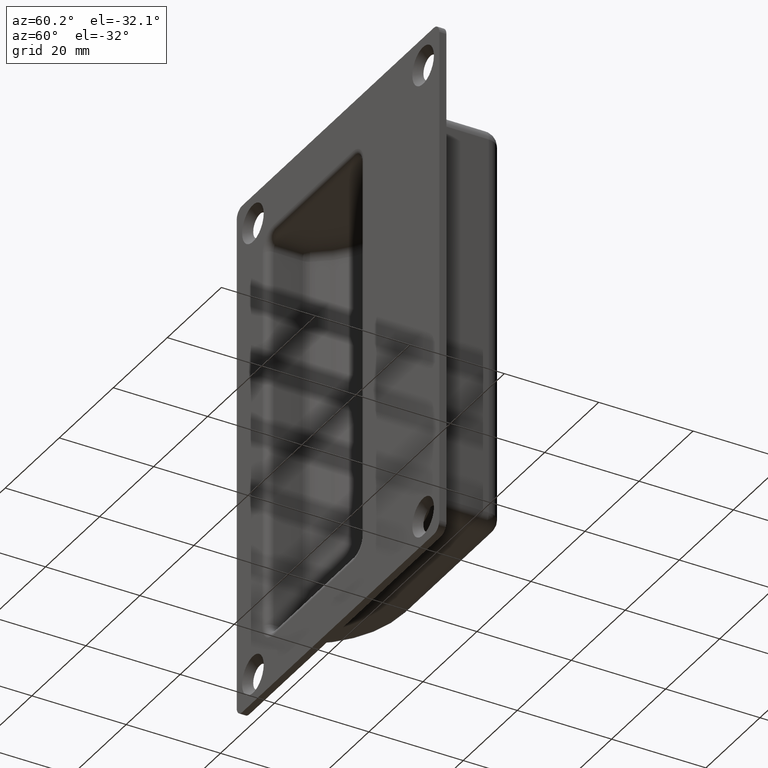
[diagram: clean part render]
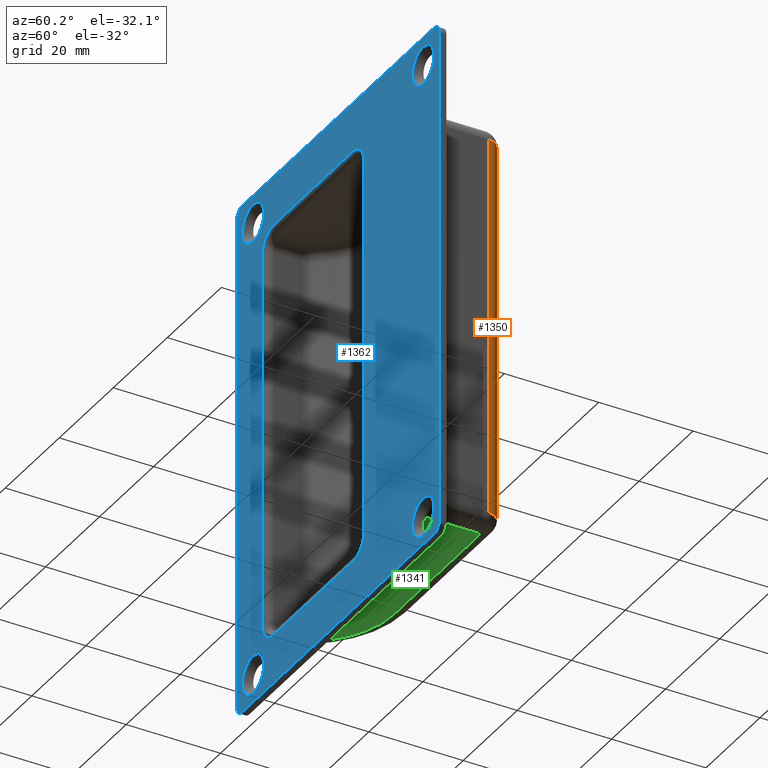
[diagram: same view with three faces highlighted in distinct colors, each labeled with its STEP entity id]
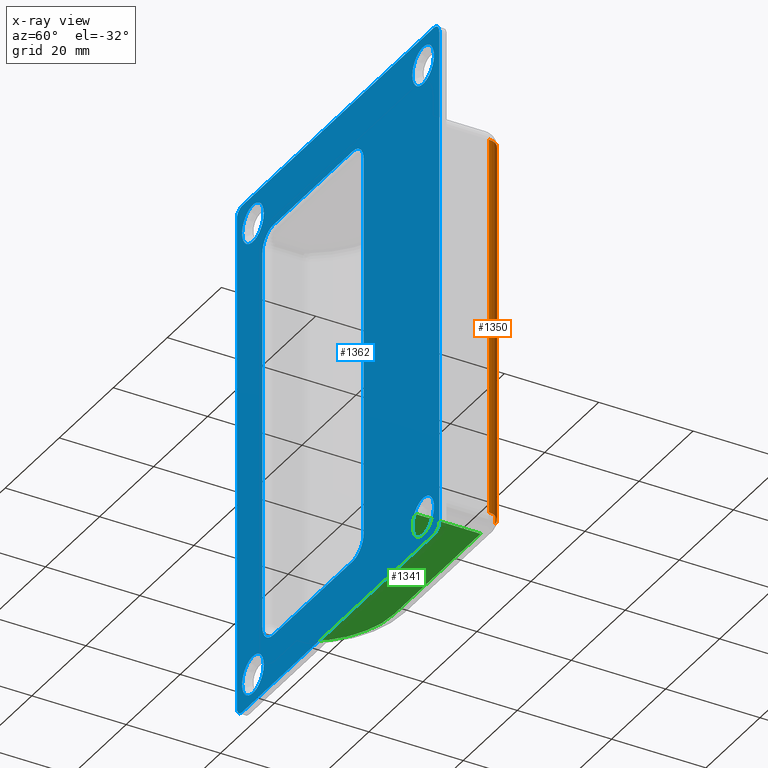
[diagram: x-ray of the same camera — body ghosted, the three highlighted faces saturated]
A machine part, auxiliary view with three faces highlighted in distinct colors.
The next image is the same camera in x-ray (body ghosted, the three faces saturated) — at least one of them is partly hidden behind the body in this view.
Their STEP definitions:

[orange] entity #1350 — the highlighted cylindrical surface (edge-blend (fillet) strip) has radius 3 mm, axis along (0, 0, 1).
#128=LINE('',#2259,#224);
#132=LINE('',#2279,#228);
#224=VECTOR('',#1837,81.);
#228=VECTOR('',#1867,81.);
#288=CYLINDRICAL_SURFACE('',#1501,3.00000000000001);
#354=FACE_OUTER_BOUND('',#440,.T.);
#440=EDGE_LOOP('',(#1141,#1142,#1143,#1144));
#538=CIRCLE('',#1485,3.00000000000001);
#543=CIRCLE('',#1495,3.00000000000001);
#600=VERTEX_POINT('',#2090);
#645=VERTEX_POINT('',#2243);
#647=VERTEX_POINT('',#2252);
#648=VERTEX_POINT('',#2261);
#813=EDGE_CURVE('',#645,#647,#538,.T.);
#814=EDGE_CURVE('',#647,#600,#128,.T.);
#820=EDGE_CURVE('',#600,#648,#543,.T.);
#824=EDGE_CURVE('',#645,#648,#132,.T.);
#1141=ORIENTED_EDGE('',*,*,#813,.F.);
#1142=ORIENTED_EDGE('',*,*,#824,.T.);
#1143=ORIENTED_EDGE('',*,*,#820,.F.);
#1144=ORIENTED_EDGE('',*,*,#814,.F.);
#1350=ADVANCED_FACE('',(#354),#288,.T.);
#1485=AXIS2_PLACEMENT_3D('',#2256,#1831,#1832);
#1495=AXIS2_PLACEMENT_3D('',#2271,#1853,#1854);
#1501=AXIS2_PLACEMENT_3D('',#2280,#1868,#1869);
#1831=DIRECTION('center_axis',(0.,0.,-1.));
#1832=DIRECTION('ref_axis',(1.,1.48029736616687E-15,0.));
#1837=DIRECTION('',(0.,0.,1.));
#1853=DIRECTION('center_axis',(0.,0.,1.));
#1854=DIRECTION('ref_axis',(1.,1.48029736616687E-15,0.));
#1867=DIRECTION('',(0.,0.,1.));
#1868=DIRECTION('center_axis',(0.,0.,1.));
#1869=DIRECTION('ref_axis',(1.,1.48029736616687E-15,0.));
#2090=CARTESIAN_POINT('',(54.,14.5,40.5));
#2243=CARTESIAN_POINT('',(51.,17.5,-40.5));
#2252=CARTESIAN_POINT('',(54.,14.5,-40.5));
#2256=CARTESIAN_POINT('Origin',(51.,14.5,-40.5));
#2259=CARTESIAN_POINT('',(54.,14.5,0.));
#2261=CARTESIAN_POINT('',(51.,17.5,40.5));
#2271=CARTESIAN_POINT('Origin',(51.,14.5,40.5));
#2279=CARTESIAN_POINT('',(51.,17.5,0.));
#2280=CARTESIAN_POINT('Origin',(51.,14.5,0.));

[blue] entity #1362 — the highlighted planar face has unit normal (0, 1, 0).
#31=FACE_BOUND('',#453,.T.);
#32=FACE_BOUND('',#454,.T.);
#33=FACE_BOUND('',#455,.T.);
#34=FACE_BOUND('',#456,.T.);
#35=FACE_BOUND('',#457,.T.);
#64=PLANE('',#1531);
#142=LINE('',#2316,#238);
#144=LINE('',#2328,#240);
#146=LINE('',#2340,#242);
#147=LINE('',#2348,#243);
#150=LINE('',#2354,#246);
#151=LINE('',#2358,#247);
#152=LINE('',#2362,#248);
#153=LINE('',#2366,#249);
#238=VECTOR('',#1903,29.5);
#240=VECTOR('',#1917,81.);
#242=VECTOR('',#1931,29.5);
#243=VECTOR('',#1942,81.);
#246=VECTOR('',#1947,71.);
#247=VECTOR('',#1950,106.);
#248=VECTOR('',#1953,71.);
#249=VECTOR('',#1956,106.);
#366=FACE_OUTER_BOUND('',#452,.T.);
#452=EDGE_LOOP('',(#1193,#1194,#1195,#1196,#1197,#1198,#1199,#1200));
#453=EDGE_LOOP('',(#1201));
#454=EDGE_LOOP('',(#1202));
#455=EDGE_LOOP('',(#1203));
#456=EDGE_LOOP('',(#1204));
#457=EDGE_LOOP('',(#1205,#1206,#1207,#1208,#1209,#1210,#1211,#1212));
#550=CIRCLE('',#1511,4.);
#554=CIRCLE('',#1517,4.);
#558=CIRCLE('',#1523,4.);
#562=CIRCLE('',#1529,4.);
#563=CIRCLE('',#1532,2.);
#564=CIRCLE('',#1533,2.);
#565=CIRCLE('',#1534,2.);
#566=CIRCLE('',#1535,2.);
#567=CIRCLE('',#1536,4.);
#568=CIRCLE('',#1537,4.);
#569=CIRCLE('',#1538,4.);
#570=CIRCLE('',#1539,4.);
#659=VERTEX_POINT('',#2303);
#662=VERTEX_POINT('',#2308);
#664=VERTEX_POINT('',#2314);
#666=VERTEX_POINT('',#2320);
#668=VERTEX_POINT('',#2326);
#670=VERTEX_POINT('',#2332);
#672=VERTEX_POINT('',#2338);
#674=VERTEX_POINT('',#2344);
#675=VERTEX_POINT('',#2352);
#676=VERTEX_POINT('',#2353);
#677=VERTEX_POINT('',#2355);
#678=VERTEX_POINT('',#2357);
#679=VERTEX_POINT('',#2359);
#680=VERTEX_POINT('',#2361);
#681=VERTEX_POINT('',#2363);
#682=VERTEX_POINT('',#2365);
#683=VERTEX_POINT('',#2368);
#684=VERTEX_POINT('',#2370);
#685=VERTEX_POINT('',#2372);
#686=VERTEX_POINT('',#2374);
#838=EDGE_CURVE('',#662,#659,#550,.T.);
#841=EDGE_CURVE('',#664,#662,#142,.T.);
#844=EDGE_CURVE('',#666,#664,#554,.T.);
#847=EDGE_CURVE('',#668,#666,#144,.T.);
#850=EDGE_CURVE('',#670,#668,#558,.T.);
#853=EDGE_CURVE('',#672,#670,#146,.T.);
#856=EDGE_CURVE('',#674,#672,#562,.T.);
#857=EDGE_CURVE('',#659,#674,#147,.T.);
#860=EDGE_CURVE('',#675,#676,#150,.T.);
#861=EDGE_CURVE('',#676,#677,#563,.T.);
#862=EDGE_CURVE('',#677,#678,#151,.T.);
#863=EDGE_CURVE('',#678,#679,#564,.T.);
#864=EDGE_CURVE('',#679,#680,#152,.T.);
#865=EDGE_CURVE('',#680,#681,#565,.T.);
#866=EDGE_CURVE('',#681,#682,#153,.T.);
#867=EDGE_CURVE('',#682,#675,#566,.T.);
#868=EDGE_CURVE('',#683,#683,#567,.T.);
#869=EDGE_CURVE('',#684,#684,#568,.T.);
#870=EDGE_CURVE('',#685,#685,#569,.T.);
#871=EDGE_CURVE('',#686,#686,#570,.T.);
#1193=ORIENTED_EDGE('',*,*,#860,.T.);
#1194=ORIENTED_EDGE('',*,*,#861,.T.);
#1195=ORIENTED_EDGE('',*,*,#862,.T.);
#1196=ORIENTED_EDGE('',*,*,#863,.T.);
#1197=ORIENTED_EDGE('',*,*,#864,.T.);
#1198=ORIENTED_EDGE('',*,*,#865,.T.);
#1199=ORIENTED_EDGE('',*,*,#866,.T.);
#1200=ORIENTED_EDGE('',*,*,#867,.T.);
#1201=ORIENTED_EDGE('',*,*,#868,.T.);
#1202=ORIENTED_EDGE('',*,*,#869,.T.);
#1203=ORIENTED_EDGE('',*,*,#870,.T.);
#1204=ORIENTED_EDGE('',*,*,#871,.T.);
#1205=ORIENTED_EDGE('',*,*,#838,.F.);
#1206=ORIENTED_EDGE('',*,*,#841,.F.);
#1207=ORIENTED_EDGE('',*,*,#844,.F.);
#1208=ORIENTED_EDGE('',*,*,#847,.F.);
#1209=ORIENTED_EDGE('',*,*,#850,.F.);
#1210=ORIENTED_EDGE('',*,*,#853,.F.);
#1211=ORIENTED_EDGE('',*,*,#856,.F.);
#1212=ORIENTED_EDGE('',*,*,#857,.F.);
#1362=ADVANCED_FACE('',(#366,#31,#32,#33,#34,#35),#64,.F.);
#1511=AXIS2_PLACEMENT_3D('',#2310,#1896,#1897);
#1517=AXIS2_PLACEMENT_3D('',#2322,#1910,#1911);
#1523=AXIS2_PLACEMENT_3D('',#2334,#1924,#1925);
#1529=AXIS2_PLACEMENT_3D('',#2346,#1938,#1939);
#1531=AXIS2_PLACEMENT_3D('',#2351,#1945,#1946);
#1532=AXIS2_PLACEMENT_3D('',#2356,#1948,#1949);
#1533=AXIS2_PLACEMENT_3D('',#2360,#1951,#1952);
#1534=AXIS2_PLACEMENT_3D('',#2364,#1954,#1955);
#1535=AXIS2_PLACEMENT_3D('',#2367,#1957,#1958);
#1536=AXIS2_PLACEMENT_3D('',#2369,#1959,#1960);
#1537=AXIS2_PLACEMENT_3D('',#2371,#1961,#1962);
#1538=AXIS2_PLACEMENT_3D('',#2373,#1963,#1964);
#1539=AXIS2_PLACEMENT_3D('',#2375,#1965,#1966);
#1896=DIRECTION('center_axis',(0.,-1.,0.));
#1897=DIRECTION('ref_axis',(0.707106781186548,0.,-0.707106781186547));
#1903=DIRECTION('',(1.,0.,2.3521674250533E-16));
#1910=DIRECTION('center_axis',(0.,-1.,0.));
#1911=DIRECTION('ref_axis',(-0.707106781186548,0.,-0.707106781186548));
#1917=DIRECTION('',(3.04968670344565E-16,0.,-1.));
#1924=DIRECTION('center_axis',(0.,-1.,0.));
#1925=DIRECTION('ref_axis',(-0.707106781186548,0.,0.707106781186548));
#1931=DIRECTION('',(-1.,0.,6.02154860813644E-16));
#1938=DIRECTION('center_axis',(0.,-1.,0.));
#1939=DIRECTION('ref_axis',(0.707106781186549,0.,0.707106781186546));
#1942=DIRECTION('',(0.,0.,1.));
#1945=DIRECTION('center_axis',(0.,1.,0.));
#1946=DIRECTION('ref_axis',(0.,0.,1.));
#1947=DIRECTION('',(-1.,0.,0.));
#1948=DIRECTION('center_axis',(0.,-1.,0.));
#1949=DIRECTION('ref_axis',(0.,0.,1.));
#1950=DIRECTION('',(0.,0.,-1.));
#1951=DIRECTION('center_axis',(0.,-1.,0.));
#1952=DIRECTION('ref_axis',(-1.,0.,0.));
#1953=DIRECTION('',(1.,0.,0.));
#1954=DIRECTION('center_axis',(0.,-1.,0.));
#1955=DIRECTION('ref_axis',(0.,0.,-1.));
#1956=DIRECTION('',(0.,0.,1.));
#1957=DIRECTION('center_axis',(0.,-1.,0.));
#1958=DIRECTION('ref_axis',(1.,0.,0.));
#1959=DIRECTION('center_axis',(0.,1.,0.));
#1960=DIRECTION('ref_axis',(1.,0.,0.));
#1961=DIRECTION('center_axis',(0.,1.,0.));
#1962=DIRECTION('ref_axis',(1.,0.,0.));
#1963=DIRECTION('center_axis',(0.,1.,0.));
#1964=DIRECTION('ref_axis',(1.,0.,0.));
#1965=DIRECTION('center_axis',(0.,1.,0.));
#1966=DIRECTION('ref_axis',(1.,0.,0.));
#2303=CARTESIAN_POINT('',(36.5,-2.,-40.5));
#2308=CARTESIAN_POINT('',(32.5,-2.,-44.5));
#2310=CARTESIAN_POINT('Origin',(32.5,-2.,-40.5));
#2314=CARTESIAN_POINT('',(3.00000000000001,-2.,-44.5));
#2316=CARTESIAN_POINT('',(29.75,-2.,-44.5));
#2320=CARTESIAN_POINT('',(-0.999999999999984,-2.,-40.5));
#2322=CARTESIAN_POINT('Origin',(3.00000000000001,-2.,-40.5));
#2326=CARTESIAN_POINT('',(-1.00000000000001,-2.,40.5));
#2328=CARTESIAN_POINT('',(-0.999999999999992,-2.,-20.25));
#2332=CARTESIAN_POINT('',(2.99999999999998,-2.,44.5));
#2334=CARTESIAN_POINT('Origin',(2.99999999999998,-2.,40.5));
#2338=CARTESIAN_POINT('',(32.5,-2.,44.5));
#2340=CARTESIAN_POINT('',(15.,-2.,44.5));
#2344=CARTESIAN_POINT('',(36.5,-2.,40.5));
#2346=CARTESIAN_POINT('Origin',(32.5,-2.,40.5));
#2348=CARTESIAN_POINT('',(36.5,-2.,20.25));
#2351=CARTESIAN_POINT('Origin',(27.,-2.,2.16286271355846E-14));
#2352=CARTESIAN_POINT('',(62.5,-2.,55.));
#2353=CARTESIAN_POINT('',(-8.5,-2.,55.));
#2354=CARTESIAN_POINT('',(62.5,-2.,55.));
#2355=CARTESIAN_POINT('',(-10.5,-2.,53.));
#2356=CARTESIAN_POINT('Origin',(-8.49999999999999,-2.,53.));
#2357=CARTESIAN_POINT('',(-10.5,-2.,-53.));
#2358=CARTESIAN_POINT('',(-10.5,-2.,53.));
#2359=CARTESIAN_POINT('',(-8.5,-2.,-55.));
#2360=CARTESIAN_POINT('Origin',(-8.49999999999999,-2.,-53.));
#2361=CARTESIAN_POINT('',(62.5,-2.,-55.));
#2362=CARTESIAN_POINT('',(-8.49999999999999,-2.,-55.));
#2363=CARTESIAN_POINT('',(64.5,-2.,-53.));
#2364=CARTESIAN_POINT('Origin',(62.5,-2.,-53.));
#2365=CARTESIAN_POINT('',(64.5,-2.,53.));
#2366=CARTESIAN_POINT('',(64.5,-2.,-53.));
#2367=CARTESIAN_POINT('Origin',(62.5,-2.,53.));
#2368=CARTESIAN_POINT('',(-0.499999999999999,-2.,-49.));
#2369=CARTESIAN_POINT('Origin',(-4.5,-2.,-49.));
#2370=CARTESIAN_POINT('',(62.5,-2.,49.));
#2371=CARTESIAN_POINT('Origin',(58.5,-2.,49.));
#2372=CARTESIAN_POINT('',(-0.499999999999999,-2.,49.));
#2373=CARTESIAN_POINT('Origin',(-4.5,-2.,49.));
#2374=CARTESIAN_POINT('',(62.5,-2.,-49.));
#2375=CARTESIAN_POINT('Origin',(58.5,-2.,-49.));

[green] entity #1341 — the highlighted planar face has unit normal (0, 0, 1).
#58=PLANE('',#1486);
#73=LINE('',#2050,#169);
#123=LINE('',#2233,#219);
#124=LINE('',#2246,#220);
#126=LINE('',#2251,#222);
#169=VECTOR('',#1592,48.);
#219=VECTOR('',#1802,4.66829560767347);
#220=VECTOR('',#1817,32.);
#222=VECTOR('',#1825,13.5);
#345=FACE_OUTER_BOUND('',#431,.T.);
#431=EDGE_LOOP('',(#1106,#1107,#1108,#1109,#1110));
#534=CIRCLE('',#1477,18.9090909090909);
#586=VERTEX_POINT('',#2042);
#588=VERTEX_POINT('',#2048);
#641=VERTEX_POINT('',#2231);
#644=VERTEX_POINT('',#2239);
#646=VERTEX_POINT('',#2244);
#710=EDGE_CURVE('',#588,#586,#73,.T.);
#801=EDGE_CURVE('',#641,#588,#123,.T.);
#805=EDGE_CURVE('',#644,#641,#534,.T.);
#807=EDGE_CURVE('',#646,#644,#124,.T.);
#810=EDGE_CURVE('',#586,#646,#126,.T.);
#1106=ORIENTED_EDGE('',*,*,#710,.F.);
#1107=ORIENTED_EDGE('',*,*,#801,.F.);
#1108=ORIENTED_EDGE('',*,*,#805,.F.);
#1109=ORIENTED_EDGE('',*,*,#807,.F.);
#1110=ORIENTED_EDGE('',*,*,#810,.F.);
#1341=ADVANCED_FACE('',(#345),#58,.F.);
#1477=AXIS2_PLACEMENT_3D('',#2241,#1811,#1812);
#1486=AXIS2_PLACEMENT_3D('',#2257,#1833,#1834);
#1592=DIRECTION('',(1.,0.,0.));
#1802=DIRECTION('',(0.,-1.,0.));
#1811=DIRECTION('center_axis',(0.,0.,1.));
#1812=DIRECTION('ref_axis',(-0.483250085348573,0.875482355624942,0.));
#1817=DIRECTION('',(-1.,-2.77555756156289E-16,0.));
#1825=DIRECTION('',(0.,1.,0.));
#1833=DIRECTION('center_axis',(0.,0.,1.));
#1834=DIRECTION('ref_axis',(1.,0.,0.));
#2042=CARTESIAN_POINT('',(51.,1.,-43.5));
#2048=CARTESIAN_POINT('',(3.,1.,-43.5));
#2050=CARTESIAN_POINT('',(27.9852925297952,1.,-43.5));
#2231=CARTESIAN_POINT('',(3.,5.66829560767347,-43.5));
#2233=CARTESIAN_POINT('',(3.,6.67182277973651,-43.5));
#2239=CARTESIAN_POINT('',(19.,14.5,-43.5));
#2241=CARTESIAN_POINT('Origin',(19.,-4.40909090909093,-43.5));
#2244=CARTESIAN_POINT('',(51.,14.5,-43.5));
#2246=CARTESIAN_POINT('',(39.9852925297952,14.5,-43.5));
#2251=CARTESIAN_POINT('',(51.,3.83767497589977,-43.5));
#2257=CARTESIAN_POINT('Origin',(28.9705850595904,7.67534995179954,-43.5));